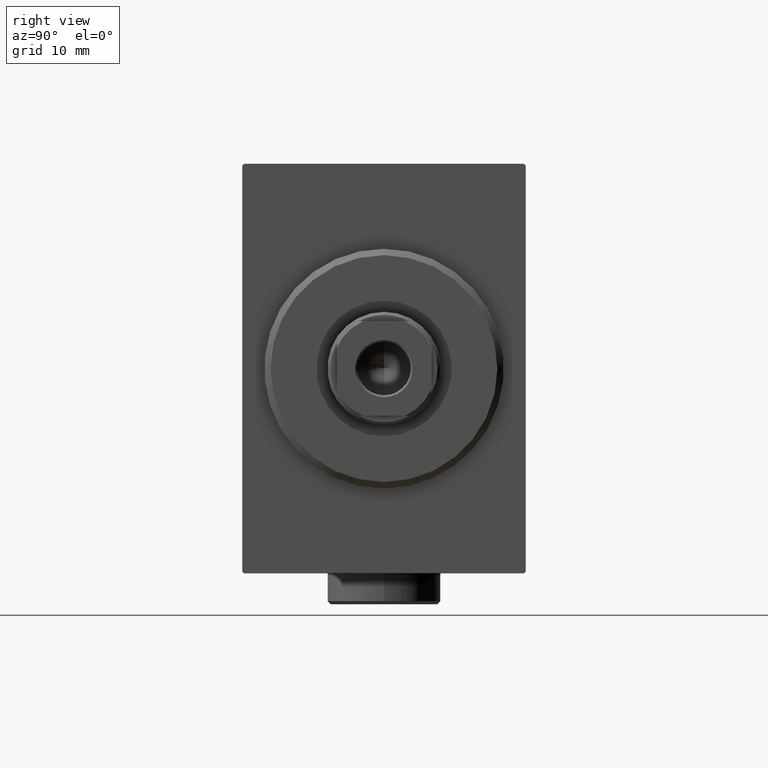
[diagram: clean part render]
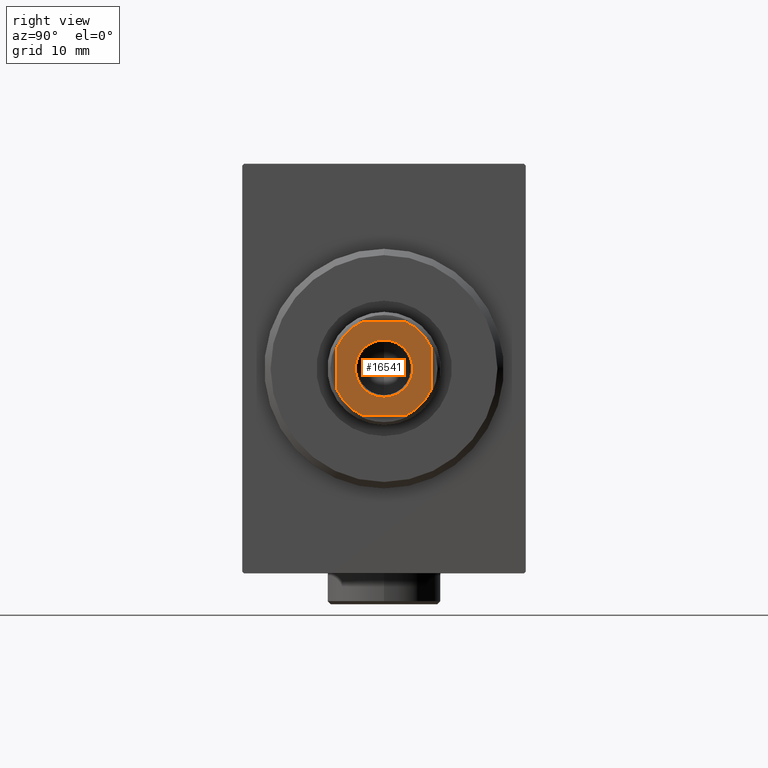
[diagram: same view with one face highlighted and labeled with its STEP entity id]
A machine part, right view. The second image highlights one B-rep face of the part: STEP entity #16541.
In plain terms, the highlighted planar face has unit normal (1, 0, -0).
Its self-contained STEP definition (entity closure, byte-faithful):
#268 = ORIENTED_EDGE ( 'NONE', *, *, #21581, .T. ) ;
#644 = CARTESIAN_POINT ( 'NONE',  ( 4.549999999999991829, 0.000000000000000000, 75.00000000000001421 ) ) ;
#2047 = EDGE_CURVE ( 'NONE', #7690, #41964, #5027, .T. ) ;
#2132 = DIRECTION ( 'NONE',  ( -1.000000000000000000, 5.782411586589357392E-17, -0.000000000000000000 ) ) ;
#3542 = ORIENTED_EDGE ( 'NONE', *, *, #16047, .T. ) ;
#3928 = VERTEX_POINT ( 'NONE', #29849 ) ;
#4019 = AXIS2_PLACEMENT_3D ( 'NONE', #37826, #13276, #10363 ) ;
#4214 = CARTESIAN_POINT ( 'NONE',  ( -3.315116890850222653, -7.499999999999998224, 75.00000000000001421 ) ) ;
#4676 = AXIS2_PLACEMENT_3D ( 'NONE', #15012, #38482, #7676 ) ;
#5027 = CIRCLE ( 'NONE', #24997, 4.549999999999991829 ) ;
#5343 = DIRECTION ( 'NONE',  ( 1.000000000000000000, 0.000000000000000000, 0.000000000000000000 ) ) ;
#5748 = DIRECTION ( 'NONE',  ( -1.156482317317871478E-16, 1.000000000000000000, -0.000000000000000000 ) ) ;
#5783 = CARTESIAN_POINT ( 'NONE',  ( 0.000000000000000000, 0.000000000000000000, 75.00000000000001421 ) ) ;
#5857 = CARTESIAN_POINT ( 'NONE',  ( 0.000000000000000000, 0.000000000000000000, 75.00000000000001421 ) ) ;
#6011 = EDGE_CURVE ( 'NONE', #41964, #7690, #17265, .T. ) ;
#6552 = DIRECTION ( 'NONE',  ( 1.000000000000000000, 0.000000000000000000, 0.000000000000000000 ) ) ;
#6595 = VERTEX_POINT ( 'NONE', #31309 ) ;
#6762 = CARTESIAN_POINT ( 'NONE',  ( 7.499999999999998224, -3.315116890850184461, 75.00000000000001421 ) ) ;
#7362 = VECTOR ( 'NONE', #5748, 1000.000000000000000 ) ;
#7676 = DIRECTION ( 'NONE',  ( 1.000000000000000000, 0.000000000000000000, 0.000000000000000000 ) ) ;
#7690 = VERTEX_POINT ( 'NONE', #9854 ) ;
#8986 = AXIS2_PLACEMENT_3D ( 'NONE', #5783, #12477, #5343 ) ;
#9810 = DIRECTION ( 'NONE',  ( 0.000000000000000000, -0.000000000000000000, -1.000000000000000000 ) ) ;
#9854 = CARTESIAN_POINT ( 'NONE',  ( -4.549999999999991829, 5.572142936120446480E-16, 75.00000000000001421 ) ) ;
#9997 = ORIENTED_EDGE ( 'NONE', *, *, #30717, .T. ) ;
#10263 = CARTESIAN_POINT ( 'NONE',  ( 0.000000000000000000, 0.000000000000000000, 75.00000000000001421 ) ) ;
#10363 = DIRECTION ( 'NONE',  ( 1.000000000000000000, 0.000000000000000000, 0.000000000000000000 ) ) ;
#10488 = DIRECTION ( 'NONE',  ( 0.000000000000000000, -0.000000000000000000, -1.000000000000000000 ) ) ;
#10839 = DIRECTION ( 'NONE',  ( 1.734723475976807094E-16, -1.000000000000000000, 0.000000000000000000 ) ) ;
#11835 = CIRCLE ( 'NONE', #8986, 8.200000000000011724 ) ;
#12477 = DIRECTION ( 'NONE',  ( -0.000000000000000000, 0.000000000000000000, 1.000000000000000000 ) ) ;
#12693 = ORIENTED_EDGE ( 'NONE', *, *, #18642, .T. ) ;
#13276 = DIRECTION ( 'NONE',  ( -0.000000000000000000, 0.000000000000000000, 1.000000000000000000 ) ) ;
#14188 = LINE ( 'NONE', #42487, #33877 ) ;
#14243 = LINE ( 'NONE', #32709, #24723 ) ;
#14637 = AXIS2_PLACEMENT_3D ( 'NONE', #23320, #19758, #39866 ) ;
#14801 = ORIENTED_EDGE ( 'NONE', *, *, #39707, .T. ) ;
#15012 = CARTESIAN_POINT ( 'NONE',  ( 0.000000000000000000, 0.000000000000000000, 75.00000000000001421 ) ) ;
#15460 = VERTEX_POINT ( 'NONE', #4214 ) ;
#16047 = EDGE_CURVE ( 'NONE', #19778, #31294, #33915, .T. ) ;
#16271 = EDGE_CURVE ( 'NONE', #6595, #15460, #36784, .T. ) ;
#16541 = ADVANCED_FACE ( 'NONE', ( #36448, #25713 ), #32876, .T. ) ;
#17120 = CARTESIAN_POINT ( 'NONE',  ( 7.499999999999998224, 3.315116890850192899, 75.00000000000001421 ) ) ;
#17265 = CIRCLE ( 'NONE', #18657, 4.549999999999991829 ) ;
#17777 = EDGE_CURVE ( 'NONE', #15460, #3928, #30456, .T. ) ;
#18230 = CARTESIAN_POINT ( 'NONE',  ( -3.315116890850159148, 7.500000000000000888, 75.00000000000001421 ) ) ;
#18642 = EDGE_CURVE ( 'NONE', #31294, #6595, #14188, .T. ) ;
#18657 = AXIS2_PLACEMENT_3D ( 'NONE', #10263, #10488, #23650 ) ;
#19156 = ORIENTED_EDGE ( 'NONE', *, *, #2047, .T. ) ;
#19758 = DIRECTION ( 'NONE',  ( -0.000000000000000000, 0.000000000000000000, 1.000000000000000000 ) ) ;
#19778 = VERTEX_POINT ( 'NONE', #18230 ) ;
#19912 = DIRECTION ( 'NONE',  ( -0.000000000000000000, 0.000000000000000000, 1.000000000000000000 ) ) ;
#20569 = VERTEX_POINT ( 'NONE', #28720 ) ;
#21581 = EDGE_CURVE ( 'NONE', #3928, #29890, #11835, .T. ) ;
#22490 = CARTESIAN_POINT ( 'NONE',  ( 7.499999999999997335, 7.500000000000000888, 75.00000000000001421 ) ) ;
#22599 = DIRECTION ( 'NONE',  ( 1.000000000000000000, 0.000000000000000000, 0.000000000000000000 ) ) ;
#22694 = VERTEX_POINT ( 'NONE', #17120 ) ;
#23272 = CARTESIAN_POINT ( 'NONE',  ( -7.500000000000000888, 3.315116890850160036, 75.00000000000001421 ) ) ;
#23305 = CARTESIAN_POINT ( 'NONE',  ( -7.499999999999999112, -7.499999999999998224, 75.00000000000001421 ) ) ;
#23320 = CARTESIAN_POINT ( 'NONE',  ( 0.000000000000000000, 0.000000000000000000, 75.00000000000001421 ) ) ;
#23650 = DIRECTION ( 'NONE',  ( 1.000000000000000000, 0.000000000000000000, 0.000000000000000000 ) ) ;
#23745 = ORIENTED_EDGE ( 'NONE', *, *, #6011, .T. ) ;
#24656 = CIRCLE ( 'NONE', #4019, 8.200000000000013500 ) ;
#24723 = VECTOR ( 'NONE', #2132, 1000.000000000000000 ) ;
#24997 = AXIS2_PLACEMENT_3D ( 'NONE', #39738, #9810, #36377 ) ;
#25713 = FACE_OUTER_BOUND ( 'NONE', #41517, .T. ) ;
#27514 = VECTOR ( 'NONE', #6552, 1000.000000000000000 ) ;
#28720 = CARTESIAN_POINT ( 'NONE',  ( 3.315116890850187126, 7.500000000000000888, 75.00000000000001421 ) ) ;
#29657 = LINE ( 'NONE', #22490, #7362 ) ;
#29849 = CARTESIAN_POINT ( 'NONE',  ( 3.315116890850187570, -7.499999999999996447, 75.00000000000001421 ) ) ;
#29890 = VERTEX_POINT ( 'NONE', #6762 ) ;
#30456 = LINE ( 'NONE', #23305, #27514 ) ;
#30717 = EDGE_CURVE ( 'NONE', #29890, #22694, #29657, .T. ) ;
#31294 = VERTEX_POINT ( 'NONE', #23272 ) ;
#31309 = CARTESIAN_POINT ( 'NONE',  ( -7.499999999999999112, -3.315116890850218212, 75.00000000000001421 ) ) ;
#32709 = CARTESIAN_POINT ( 'NONE',  ( -7.500000000000001776, 7.500000000000001776, 75.00000000000001421 ) ) ;
#32876 = PLANE ( 'NONE',  #36069 ) ;
#33422 = EDGE_LOOP ( 'NONE', ( #23745, #19156 ) ) ;
#33877 = VECTOR ( 'NONE', #10839, 1000.000000000000000 ) ;
#33885 = ORIENTED_EDGE ( 'NONE', *, *, #16271, .T. ) ;
#33915 = CIRCLE ( 'NONE', #14637, 8.200000000000002842 ) ;
#36069 = AXIS2_PLACEMENT_3D ( 'NONE', #5857, #19912, #22599 ) ;
#36377 = DIRECTION ( 'NONE',  ( 1.000000000000000000, 0.000000000000000000, 0.000000000000000000 ) ) ;
#36448 = FACE_BOUND ( 'NONE', #33422, .T. ) ;
#36784 = CIRCLE ( 'NONE', #4676, 8.200000000000024158 ) ;
#37121 = EDGE_CURVE ( 'NONE', #22694, #20569, #24656, .T. ) ;
#37826 = CARTESIAN_POINT ( 'NONE',  ( 0.000000000000000000, 0.000000000000000000, 75.00000000000001421 ) ) ;
#37877 = ORIENTED_EDGE ( 'NONE', *, *, #17777, .T. ) ;
#38397 = ORIENTED_EDGE ( 'NONE', *, *, #37121, .T. ) ;
#38482 = DIRECTION ( 'NONE',  ( -0.000000000000000000, 0.000000000000000000, 1.000000000000000000 ) ) ;
#39707 = EDGE_CURVE ( 'NONE', #20569, #19778, #14243, .T. ) ;
#39738 = CARTESIAN_POINT ( 'NONE',  ( 0.000000000000000000, 0.000000000000000000, 75.00000000000001421 ) ) ;
#39866 = DIRECTION ( 'NONE',  ( 1.000000000000000000, 0.000000000000000000, 0.000000000000000000 ) ) ;
#41517 = EDGE_LOOP ( 'NONE', ( #9997, #38397, #14801, #3542, #12693, #33885, #37877, #268 ) ) ;
#41964 = VERTEX_POINT ( 'NONE', #644 ) ;
#42487 = CARTESIAN_POINT ( 'NONE',  ( -7.500000000000001776, 7.500000000000001776, 75.00000000000001421 ) ) ;